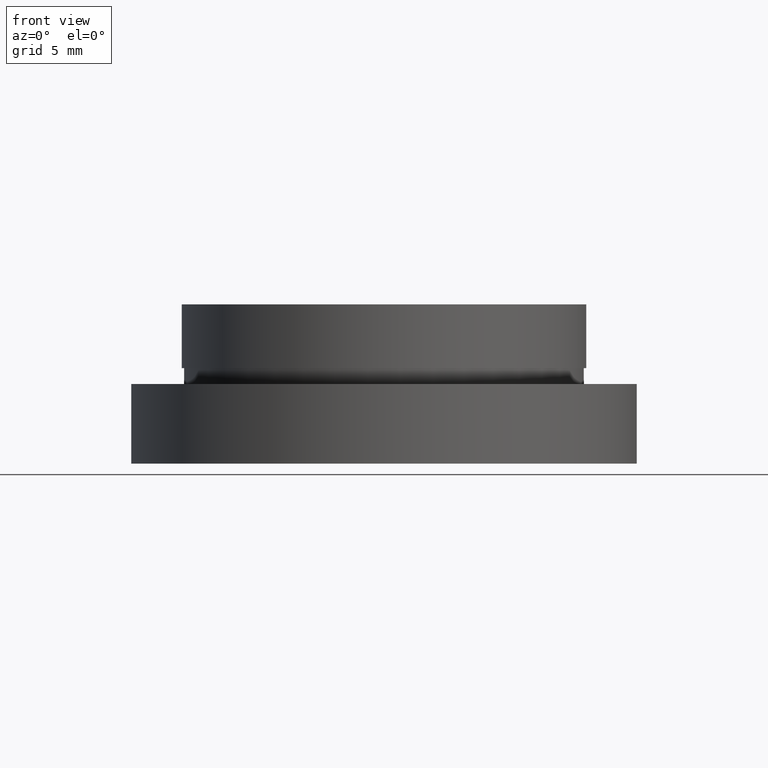
[diagram: clean part render]
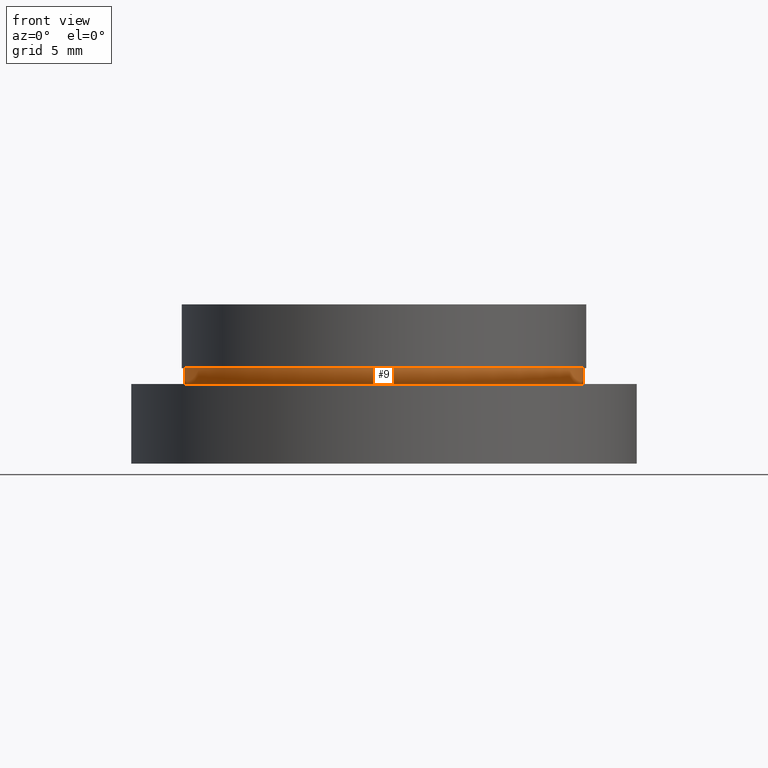
[diagram: same view with one face highlighted and labeled with its STEP entity id]
A machine part, front view. The second image highlights one B-rep face of the part: STEP entity #9.
In plain terms, the highlighted cylindrical surface (partial cylindrical patch) has radius 12.55 mm, axis along (-0, -0, -1).
Its self-contained STEP definition (entity closure, byte-faithful):
#3 = EDGE_CURVE ( 'NONE', #64, #320, #13, .T. ) ;
#4 = DIRECTION ( 'NONE',  ( -1.000000000000000000, 0.0000000000000000000, 0.0000000000000000000 ) ) ;
#9 = ADVANCED_FACE ( 'NONE', ( #190 ), #60, .T. ) ;
#13 = CIRCLE ( 'NONE', #192, 12.55000000000000200 ) ;
#44 = VERTEX_POINT ( 'NONE', #427 ) ;
#59 = AXIS2_PLACEMENT_3D ( 'NONE', #67, #349, #201 ) ;
#60 = CYLINDRICAL_SURFACE ( 'NONE', #90, 12.55000000000000200 ) ;
#63 = CARTESIAN_POINT ( 'NONE',  ( 12.55000000000000200, 1.536931732929928600E-015, -19.14057971014493000 ) ) ;
#64 = VERTEX_POINT ( 'NONE', #248 ) ;
#67 = CARTESIAN_POINT ( 'NONE',  ( 0.0000000000000000000, 0.0000000000000000000, -5.000000000000000900 ) ) ;
#90 = AXIS2_PLACEMENT_3D ( 'NONE', #339, #348, #216 ) ;
#141 = VERTEX_POINT ( 'NONE', #330 ) ;
#150 = VECTOR ( 'NONE', #291, 1000.000000000000000 ) ;
#152 = ORIENTED_EDGE ( 'NONE', *, *, #251, .T. ) ;
#170 = CARTESIAN_POINT ( 'NONE',  ( -12.55000000000000200, 0.0000000000000000000, -4.000000000000000000 ) ) ;
#175 = CARTESIAN_POINT ( 'NONE',  ( 0.0000000000000000000, 0.0000000000000000000, -4.000000000000000000 ) ) ;
#190 = FACE_OUTER_BOUND ( 'NONE', #317, .T. ) ;
#192 = AXIS2_PLACEMENT_3D ( 'NONE', #175, #280, #4 ) ;
#193 = DIRECTION ( 'NONE',  ( -0.0000000000000000000, -0.0000000000000000000, -1.000000000000000000 ) ) ;
#201 = DIRECTION ( 'NONE',  ( -1.000000000000000000, 0.0000000000000000000, 0.0000000000000000000 ) ) ;
#216 = DIRECTION ( 'NONE',  ( -1.000000000000000000, 0.0000000000000000000, 0.0000000000000000000 ) ) ;
#228 = VECTOR ( 'NONE', #193, 1000.000000000000000 ) ;
#248 = CARTESIAN_POINT ( 'NONE',  ( 12.55000000000000200, 1.536931732929928600E-015, -4.000000000000000000 ) ) ;
#251 = EDGE_CURVE ( 'NONE', #320, #141, #276, .T. ) ;
#262 = CIRCLE ( 'NONE', #59, 12.55000000000000200 ) ;
#263 = EDGE_CURVE ( 'NONE', #44, #141, #262, .T. ) ;
#276 = LINE ( 'NONE', #431, #150 ) ;
#280 = DIRECTION ( 'NONE',  ( -0.0000000000000000000, -0.0000000000000000000, -1.000000000000000000 ) ) ;
#284 = EDGE_CURVE ( 'NONE', #64, #44, #365, .T. ) ;
#291 = DIRECTION ( 'NONE',  ( -0.0000000000000000000, -0.0000000000000000000, -1.000000000000000000 ) ) ;
#317 = EDGE_LOOP ( 'NONE', ( #398, #397, #152, #353 ) ) ;
#320 = VERTEX_POINT ( 'NONE', #170 ) ;
#330 = CARTESIAN_POINT ( 'NONE',  ( -12.55000000000000200, 0.0000000000000000000, -5.000000000000000900 ) ) ;
#339 = CARTESIAN_POINT ( 'NONE',  ( 0.0000000000000000000, 0.0000000000000000000, -19.14057971014493000 ) ) ;
#348 = DIRECTION ( 'NONE',  ( -0.0000000000000000000, -0.0000000000000000000, -1.000000000000000000 ) ) ;
#349 = DIRECTION ( 'NONE',  ( -0.0000000000000000000, -0.0000000000000000000, -1.000000000000000000 ) ) ;
#353 = ORIENTED_EDGE ( 'NONE', *, *, #263, .F. ) ;
#365 = LINE ( 'NONE', #63, #228 ) ;
#397 = ORIENTED_EDGE ( 'NONE', *, *, #3, .T. ) ;
#398 = ORIENTED_EDGE ( 'NONE', *, *, #284, .F. ) ;
#427 = CARTESIAN_POINT ( 'NONE',  ( 12.55000000000000200, 1.536931732929928600E-015, -5.000000000000000900 ) ) ;
#431 = CARTESIAN_POINT ( 'NONE',  ( -12.55000000000000200, 0.0000000000000000000, -19.14057971014493000 ) ) ;